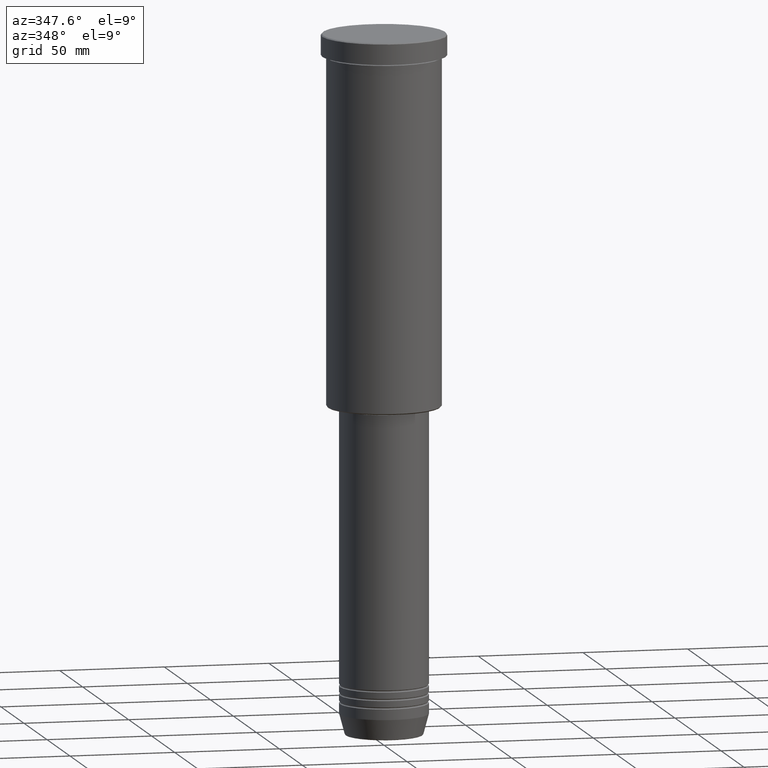
[diagram: clean part render]
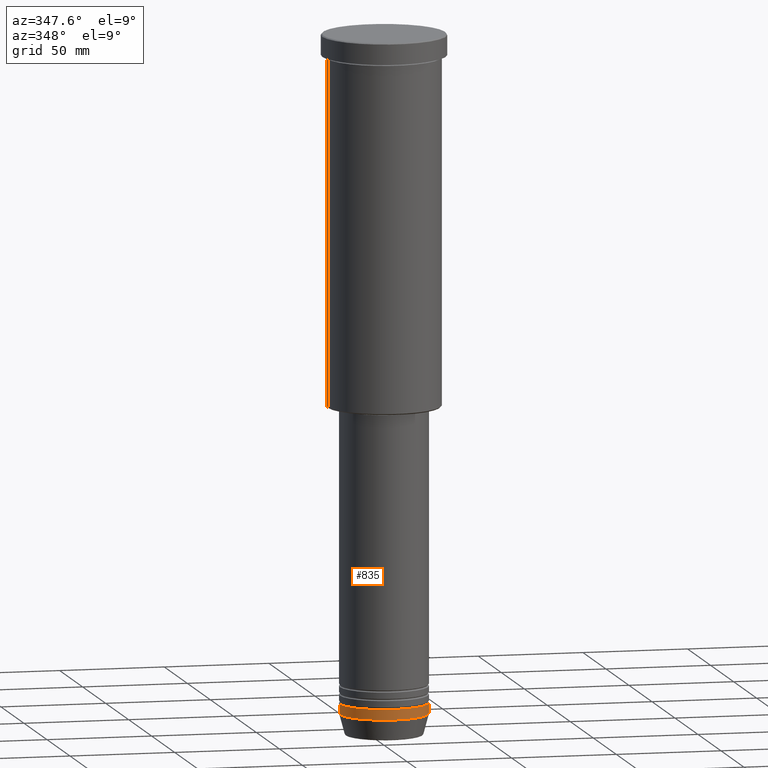
[diagram: same view with one face highlighted and labeled with its STEP entity id]
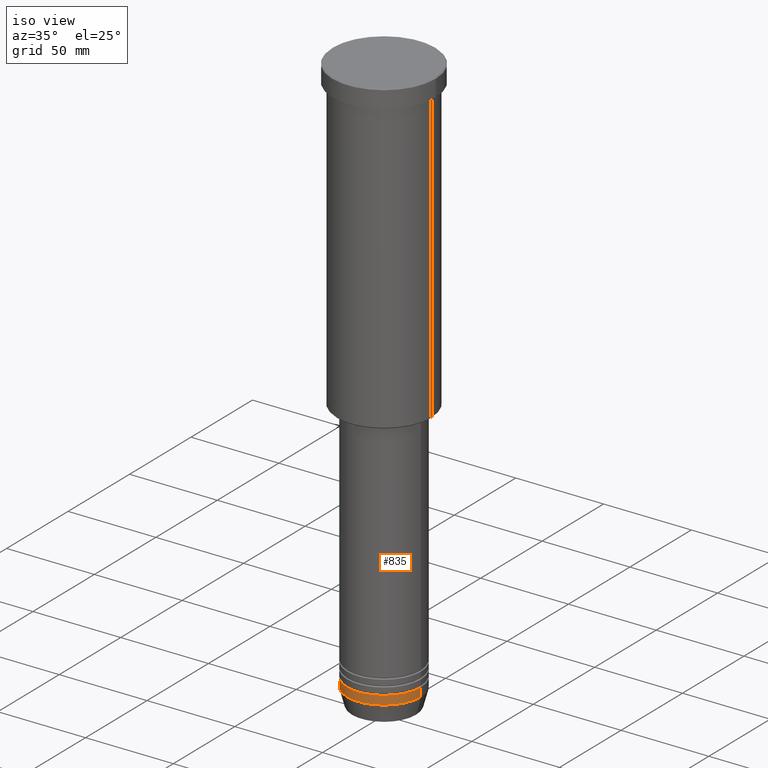
[diagram: same view with one face highlighted and labeled with its STEP entity id]
A machine part, auxiliary view. The second image highlights one B-rep face of the part: STEP entity #835.
A second angle (iso view) of the same face is appended — the face is thin or edge-on in the first view.
In plain terms, the highlighted cylindrical surface (partial cylindrical patch) has radius 21 mm, axis along (-0, -0, 1).
Its self-contained STEP definition (entity closure, byte-faithful):
#83 = CIRCLE ( 'NONE', #1170, 21.00000000000000000 ) ;
#92 = EDGE_LOOP ( 'NONE', ( #489, #689, #471, #740 ) ) ;
#95 = CARTESIAN_POINT ( 'NONE',  ( 0.000000000000000000, 0.000000000000000000, -316.0000000000000000 ) ) ;
#123 = VERTEX_POINT ( 'NONE', #665 ) ;
#155 = DIRECTION ( 'NONE',  ( -0.000000000000000000, -0.000000000000000000, 1.000000000000000000 ) ) ;
#242 = DIRECTION ( 'NONE',  ( -0.000000000000000000, -0.000000000000000000, 1.000000000000000000 ) ) ;
#323 = DIRECTION ( 'NONE',  ( -0.000000000000000000, -0.000000000000000000, 1.000000000000000000 ) ) ;
#333 = EDGE_CURVE ( 'NONE', #807, #600, #83, .T. ) ;
#348 = CARTESIAN_POINT ( 'NONE',  ( 0.000000000000000000, 0.000000000000000000, -321.0000000000000000 ) ) ;
#372 = CARTESIAN_POINT ( 'NONE',  ( -21.00000000000000000, 2.571758278209441661E-15, -316.0000000000000000 ) ) ;
#471 = ORIENTED_EDGE ( 'NONE', *, *, #486, .T. ) ;
#478 = CIRCLE ( 'NONE', #1038, 21.00000000000000000 ) ;
#486 = EDGE_CURVE ( 'NONE', #814, #600, #1043, .T. ) ;
#489 = ORIENTED_EDGE ( 'NONE', *, *, #658, .F. ) ;
#525 = FACE_OUTER_BOUND ( 'NONE', #92, .T. ) ;
#540 = DIRECTION ( 'NONE',  ( -0.000000000000000000, -0.000000000000000000, 1.000000000000000000 ) ) ;
#600 = VERTEX_POINT ( 'NONE', #691 ) ;
#658 = EDGE_CURVE ( 'NONE', #123, #807, #1067, .T. ) ;
#662 = VECTOR ( 'NONE', #155, 1000.000000000000000 ) ;
#665 = CARTESIAN_POINT ( 'NONE',  ( -21.00000000000000000, 2.571758278209441661E-15, -321.0000000000000000 ) ) ;
#689 = ORIENTED_EDGE ( 'NONE', *, *, #954, .T. ) ;
#691 = CARTESIAN_POINT ( 'NONE',  ( 21.00000000000000000, 0.000000000000000000, -316.0000000000000000 ) ) ;
#694 = VECTOR ( 'NONE', #323, 1000.000000000000000 ) ;
#740 = ORIENTED_EDGE ( 'NONE', *, *, #333, .F. ) ;
#785 = CARTESIAN_POINT ( 'NONE',  ( -21.00000000000000000, 2.571758278209441661E-15, 0.000000000000000000 ) ) ;
#807 = VERTEX_POINT ( 'NONE', #372 ) ;
#813 = CARTESIAN_POINT ( 'NONE',  ( 0.000000000000000000, 0.000000000000000000, 0.000000000000000000 ) ) ;
#814 = VERTEX_POINT ( 'NONE', #1074 ) ;
#835 = ADVANCED_FACE ( 'NONE', ( #525 ), #881, .T. ) ;
#881 = CYLINDRICAL_SURFACE ( 'NONE', #929, 21.00000000000000000 ) ;
#894 = DIRECTION ( 'NONE',  ( 1.000000000000000000, 0.000000000000000000, 0.000000000000000000 ) ) ;
#898 = DIRECTION ( 'NONE',  ( -0.000000000000000000, -0.000000000000000000, 1.000000000000000000 ) ) ;
#929 = AXIS2_PLACEMENT_3D ( 'NONE', #813, #540, #1086 ) ;
#954 = EDGE_CURVE ( 'NONE', #123, #814, #478, .T. ) ;
#955 = CARTESIAN_POINT ( 'NONE',  ( 21.00000000000000000, 0.000000000000000000, 0.000000000000000000 ) ) ;
#1038 = AXIS2_PLACEMENT_3D ( 'NONE', #348, #242, #894 ) ;
#1043 = LINE ( 'NONE', #955, #694 ) ;
#1067 = LINE ( 'NONE', #785, #662 ) ;
#1074 = CARTESIAN_POINT ( 'NONE',  ( 21.00000000000000000, 0.000000000000000000, -321.0000000000000000 ) ) ;
#1086 = DIRECTION ( 'NONE',  ( 1.000000000000000000, 0.000000000000000000, 0.000000000000000000 ) ) ;
#1170 = AXIS2_PLACEMENT_3D ( 'NONE', #95, #898, #1176 ) ;
#1176 = DIRECTION ( 'NONE',  ( 1.000000000000000000, 0.000000000000000000, 0.000000000000000000 ) ) ;